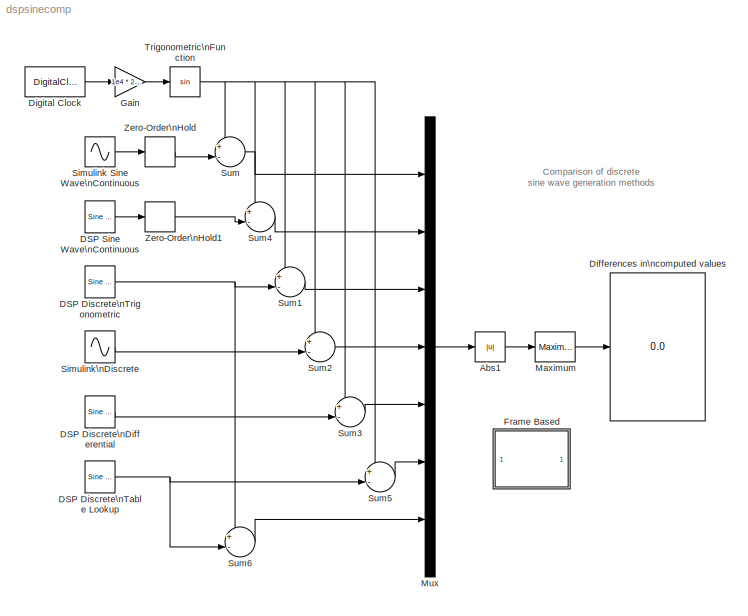
MODEL dspsinecomp
KIND model
CONFIG AbsTol = auto
CONFIG FixedStep = auto
CONFIG MaxStep = auto
CONFIG MinStep = auto
CONFIG RelTol = 1e-3
CONFIG Solver = FixedStepDiscrete
CONFIG SolverMode = Auto
CONFIG StartTime = 0.0
CONFIG StopTime = inf
BLOCK [Abs] Abs1
  SaturateOnIntegerOverflow = on
BLOCK [Reference] DSP Discrete\nDifferential  REF=dspsrcs3/Sine Wave
  Amplitude = 1
  CompMethod = Differential
  Frequency = 1e4
  OutComplex = Real
  Phase = 0
  Ports = [0, 1]
  ResetState = Restart at time zero
  SampleMode = Discrete
  SampleTime = 1e-5
  SamplesPerFrame = 1
  SourceBlock = dspsrcs3/Sine Wave
  SourceType = Sine Wave
  TableSize = Speed
BLOCK [Reference] DSP Discrete\nTable Lookup  REF=dspsrcs3/Sine Wave
  Amplitude = 1
  CompMethod = Table Lookup
  Frequency = 1e4
  OutComplex = Real
  Phase = 0
  Ports = [0, 1]
  ResetState = Restart at time zero
  SampleMode = Discrete
  SampleTime = 1e-5
  SamplesPerFrame = 1
  SourceBlock = dspsrcs3/Sine Wave
  SourceType = Sine Wave
  TableSize = Speed
BLOCK [Reference] DSP Discrete\nTrigonometric  REF=dspsrcs3/Sine Wave
  Amplitude = 1
  CompMethod = Trigonometric Fcn
  Frequency = 1e4
  OutComplex = Real
  Phase = 0
  Ports = [0, 1]
  ResetState = Restart at time zero
  SampleMode = Discrete
  SampleTime = 1e-5
  SamplesPerFrame = 1
  SourceBlock = dspsrcs3/Sine Wave
  SourceType = Sine Wave
  TableSize = Speed
BLOCK [Reference] DSP Sine Wave\nContinuous  REF=dspsrcs3/Sine Wave
  Amplitude = 1
  CompMethod = Trigonometric Fcn
  Frequency = 1e4
  OutComplex = Real
  Phase = 0
  Ports = [0, 1]
  ResetState = Restart at time zero
  SampleMode = Continuous
  SampleTime = 1/1000
  SamplesPerFrame = 1
  SourceBlock = dspsrcs3/Sine Wave
  SourceType = Sine Wave
  TableSize = Speed
BLOCK [Display] Differences in\ncomputed values
  Decimation = 1
  Floating = off
  Format = short
  Ports = [1]
  SampleTime = -1
BLOCK [DigitalClock] Digital Clock
  SampleTime = 1e-5
BLOCK [SubSystem] Frame Based
  MaskDisplay = disp('Frame-based\\nVersion')
  MaskIconFrame = on
  MaskIconOpaque = on
  MaskIconRotate = none
  MaskIconUnits = autoscale
  OpenFcn = dspfsinecomp;
  Ports = []
  RTWFcnNameOpts = Auto
  RTWFileNameOpts = Auto
  RTWSystemCode = Auto
  ShowPortLabels = on
  TreatAsAtomicUnit = off
BLOCK [Gain] Gain
  Gain = 1e4 * 2 * pi
  Multiplication = Element-wise(K.*u)
  SaturateOnIntegerOverflow = on
BLOCK [Reference] Maximum  REF=dspstat3/Maximum
  Ports = [1, 1]
  SourceBlock = dspstat3/Maximum
  SourceType = Maximum
  fcn = Running
  reset = None
BLOCK [Mux] Mux
  BusCreatorMode = off
  DisplayOption = bar
  Inputs = 7
  Ports = [7, 1]
BLOCK [Sin] Simulink Sine Wave\nContinuous
  Amplitude = 1
  Bias = 0
  Frequency = 1e4 * 2 * pi
  Offset = 0
  Phase = 0
  SampleTime = 0
  Samples = 10
  SineType = Time-based
  VectorParams1D = on
BLOCK [Sin] Simulink\nDiscrete
  Amplitude = 1
  Bias = 0
  Frequency = 1e4  * 2 * pi
  Offset = 0
  Phase = 0
  SampleTime = 1e-5
  Samples = 10
  SineType = Time-based
  VectorParams1D = on
BLOCK [Sum] Sum
  IconShape = round
  Inputs = +-|
  Ports = [2, 1]
  SaturateOnIntegerOverflow = on
BLOCK [Sum] Sum1
  IconShape = round
  Inputs = +-|
  Ports = [2, 1]
  SaturateOnIntegerOverflow = on
BLOCK [Sum] Sum2
  IconShape = round
  Inputs = +-|
  Ports = [2, 1]
  SaturateOnIntegerOverflow = on
BLOCK [Sum] Sum3
  IconShape = round
  Inputs = +-|
  Ports = [2, 1]
  SaturateOnIntegerOverflow = on
BLOCK [Sum] Sum4
  IconShape = round
  Inputs = +-|
  Ports = [2, 1]
  SaturateOnIntegerOverflow = on
BLOCK [Sum] Sum5
  IconShape = round
  Inputs = +-|
  Ports = [2, 1]
  SaturateOnIntegerOverflow = on
BLOCK [Sum] Sum6
  IconShape = round
  Inputs = +-|
  Ports = [2, 1]
  SaturateOnIntegerOverflow = on
BLOCK [Trigonometry] Trigonometric\nFunction
  Operator = sin
  OutputSignalType = auto
  Ports = [1, 1]
BLOCK [ZeroOrderHold] Zero-Order\nHold
  SampleTime = 1e-5
BLOCK [ZeroOrderHold] Zero-Order\nHold1
  SampleTime = 1e-5
LINE Abs1:1 -> Maximum:1
LINE DSP Discrete\nDifferential:1 -> Sum3:2
NET DSP Discrete\nTable Lookup:1 -> Sum5:2, Sum6:2
NET DSP Discrete\nTrigonometric:1 -> Sum1:2, Sum6:1
LINE DSP Sine Wave\nContinuous:1 -> Zero-Order\nHold1:1
LINE Digital Clock:1 -> Gain:1
LINE Gain:1 -> Trigonometric\nFunction:1
LINE Maximum:1 -> Differences in\ncomputed values:1
LINE Mux:1 -> Abs1:1
LINE Simulink Sine Wave\nContinuous:1 -> Zero-Order\nHold:1
LINE Simulink\nDiscrete:1 -> Sum2:2
LINE Sum1:1 -> Mux:3
LINE Sum2:1 -> Mux:4
LINE Sum3:1 -> Mux:5
LINE Sum4:1 -> Mux:2
LINE Sum5:1 -> Mux:6
LINE Sum6:1 -> Mux:7
LINE Sum:1 -> Mux:1
NET Trigonometric\nFunction:1 -> Sum1:1, Sum2:1, Sum3:1, Sum4:1, Sum5:1, Sum:1
LINE Zero-Order\nHold1:1 -> Sum4:2
LINE Zero-Order\nHold:1 -> Sum:2
note: NET lines group one-source signal fan-out (src -> all destinations, sorted); 1:1 wires keep LINE
